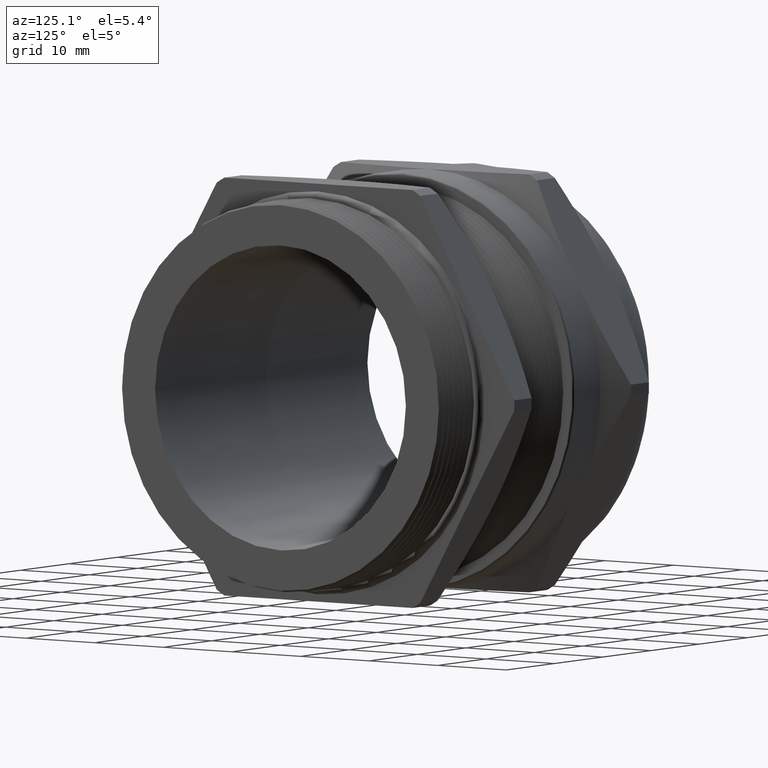
[diagram: clean part render]
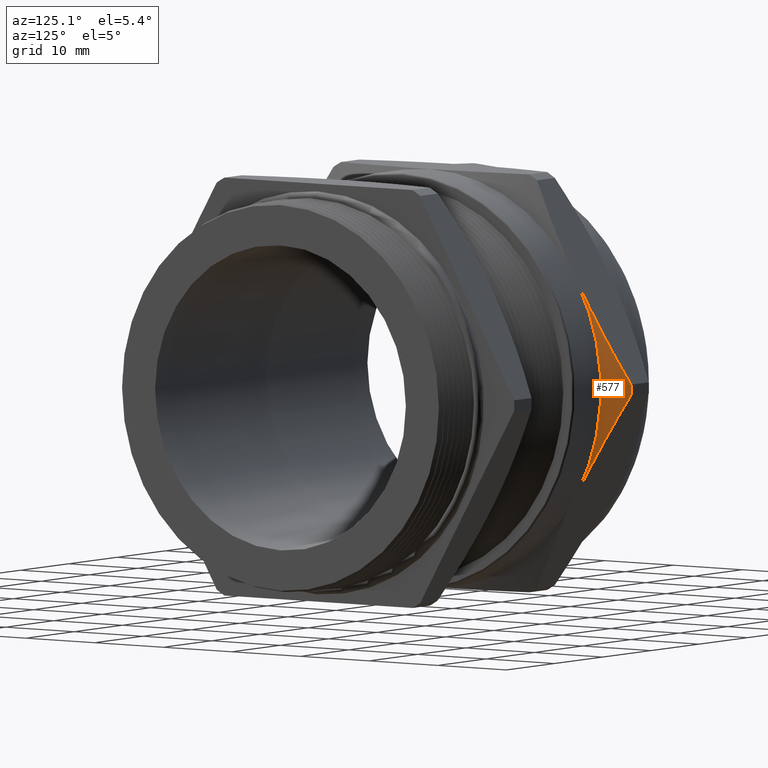
[diagram: same view with one face highlighted and labeled with its STEP entity id]
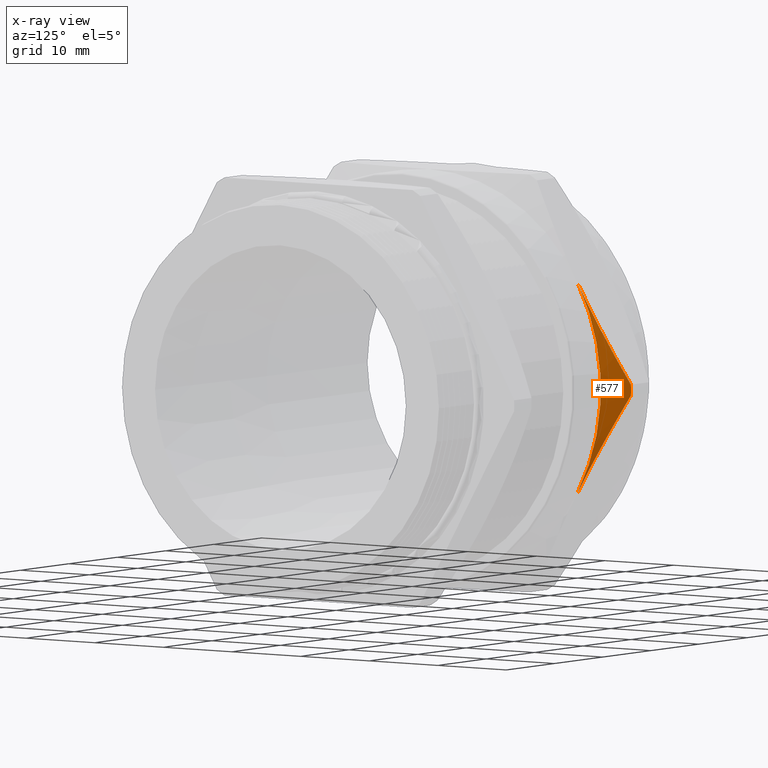
[diagram: x-ray of the same camera — body ghosted, the highlighted face saturated]
A machine part, auxiliary view. The second image highlights one B-rep face of the part: STEP entity #577.
The next image is the same camera in x-ray: the body ghosted, the highlighted face saturated — about 0% of this face is hidden behind the body in this view.
In plain terms, the highlighted conical surface has half-angle 70 deg.
Its self-contained STEP definition (entity closure, byte-faithful):
#364 = EDGE_CURVE ( 'NONE', #365, #385, #1491, .T. ) ;
#365 = VERTEX_POINT ( 'NONE', #1486 ) ;
#385 = VERTEX_POINT ( 'NONE', #1511 ) ;
#502 = EDGE_LOOP ( 'NONE', ( #503, #504, #505, #506 ) ) ;
#503 = ORIENTED_EDGE ( 'NONE', *, *, #364, .T. ) ;
#504 = ORIENTED_EDGE ( 'NONE', *, *, #4072, .F. ) ;
#505 = ORIENTED_EDGE ( 'NONE', *, *, #4236, .T. ) ;
#506 = ORIENTED_EDGE ( 'NONE', *, *, #4318, .F. ) ;
#577 = ADVANCED_FACE ( 'NONE', ( #1809 ), #1808, .T. ) ;
#1486 = CARTESIAN_POINT ( 'NONE',  ( -0.3674999999999998300, 0.8530350227276717300, 0.4924999999999999400 ) ) ;
#1487 = DIRECTION ( 'NONE',  ( 0.0000000000000000000, 0.0000000000000000000, 1.000000000000000000 ) ) ;
#1488 = DIRECTION ( 'NONE',  ( -1.000000000000000000, 0.0000000000000000000, 0.0000000000000000000 ) ) ;
#1489 = CARTESIAN_POINT ( 'NONE',  ( -0.3674999999999998300, 0.0000000000000000000, 0.0000000000000000000 ) ) ;
#1490 = AXIS2_PLACEMENT_3D ( 'NONE', #1489, #1488, #1487 ) ;
#1491 = CIRCLE ( 'NONE', #1490, 0.9849999999999999900 ) ;
#1511 = CARTESIAN_POINT ( 'NONE',  ( -0.3674999999999998300, 0.8530350227276719500, -0.4924999999999994400 ) ) ;
#1804 = DIRECTION ( 'NONE',  ( 0.0000000000000000000, 0.0000000000000000000, -1.000000000000000000 ) ) ;
#1805 = DIRECTION ( 'NONE',  ( -1.000000000000000000, 0.0000000000000000000, 0.0000000000000000000 ) ) ;
#1806 = AXIS2_PLACEMENT_3D ( 'NONE', #1814, #1805, #1804 ) ;
#1808 = CONICAL_SURFACE ( 'NONE', #1806, 0.9849999999999997600, 1.221730476396033500 ) ;
#1809 = FACE_OUTER_BOUND ( 'NONE', #502, .T. ) ;
#1814 = CARTESIAN_POINT ( 'NONE',  ( -0.3674999999999998300, 0.0000000000000000000, 0.0000000000000000000 ) ) ;
#2844 = B_SPLINE_CURVE_WITH_KNOTS ( 'NONE', 3,
 ( #2895, #2894, #2893, #2892, #2891, #2890 ),
 .UNSPECIFIED., .F., .F.,
 ( 4, 2, 4 ),
 ( 2.309401076741337200E-007, 0.006847396926039362800, 0.01369456291197105100 ),
 .UNSPECIFIED. ) ;
#2890 = CARTESIAN_POINT ( 'NONE',  ( -0.3674999999999998300, 0.8530350227276719500, -0.4924999999999994400 ) ) ;
#2891 = CARTESIAN_POINT ( 'NONE',  ( -0.3675000000000001000, 0.8979639333965154800, -0.4146808439928400000 ) ) ;
#2892 = CARTESIAN_POINT ( 'NONE',  ( -0.3720504794872306300, 0.9428928440653582300, -0.3368616879856804500 ) ) ;
#2893 = CARTESIAN_POINT ( 'NONE',  ( -0.3893171509596630200, 1.032750665403044700, -0.1812233759713611800 ) ) ;
#2894 = CARTESIAN_POINT ( 'NONE',  ( -0.4019883081776242100, 1.077679576071887400, -0.1034042199642014200 ) ) ;
#2895 = CARTESIAN_POINT ( 'NONE',  ( -0.4176914953053086900, 1.122608486740730700, -0.02558506395704169800 ) ) ;
#3161 = CARTESIAN_POINT ( 'NONE',  ( -0.4176914953053087500, 1.122608486740731100, 0.02558506395704161400 ) ) ;
#3207 = CARTESIAN_POINT ( 'NONE',  ( -0.4176914953053086900, 1.122608486740730700, -0.02558506395704169800 ) ) ;
#3229 = DIRECTION ( 'NONE',  ( 0.0000000000000000000, -6.838973831690964300E-014, 1.000000000000000000 ) ) ;
#3230 = DIRECTION ( 'NONE',  ( 1.000000000000000000, 0.0000000000000000000, 0.0000000000000000000 ) ) ;
#3231 = CARTESIAN_POINT ( 'NONE',  ( -0.4176914953053087500, 0.0000000000000000000, 0.0000000000000000000 ) ) ;
#3232 = AXIS2_PLACEMENT_3D ( 'NONE', #3231, #3230, #3229 ) ;
#3233 = CIRCLE ( 'NONE', #3232, 1.122900000000000000 ) ;
#3397 = CARTESIAN_POINT ( 'NONE',  ( -0.4176914953053087500, 1.122608486740731100, 0.02558506395704161400 ) ) ;
#3398 = CARTESIAN_POINT ( 'NONE',  ( -0.4019883081776243800, 1.077679576071887600, 0.1034042199642013200 ) ) ;
#3399 = CARTESIAN_POINT ( 'NONE',  ( -0.3893171509596631300, 1.032750665403044700, 0.1812233759713610400 ) ) ;
#3400 = CARTESIAN_POINT ( 'NONE',  ( -0.3720504794872306300, 0.9428928440653583400, 0.3368616879856805600 ) ) ;
#3401 = CARTESIAN_POINT ( 'NONE',  ( -0.3675000000000000500, 0.8979639333965152600, 0.4146808439928402800 ) ) ;
#3402 = CARTESIAN_POINT ( 'NONE',  ( -0.3674999999999998300, 0.8530350227276717300, 0.4924999999999999400 ) ) ;
#3403 = B_SPLINE_CURVE_WITH_KNOTS ( 'NONE', 3,
 ( #3402, #3401, #3400, #3399, #3398, #3397 ),
 .UNSPECIFIED., .F., .F.,
 ( 4, 2, 4 ),
 ( 0.01369456291197107000, 0.02054172889790277200, 0.02738889488383446800 ),
 .UNSPECIFIED. ) ;
#4072 = EDGE_CURVE ( 'NONE', #4221, #385, #2844, .T. ) ;
#4211 = VERTEX_POINT ( 'NONE', #3161 ) ;
#4221 = VERTEX_POINT ( 'NONE', #3207 ) ;
#4236 = EDGE_CURVE ( 'NONE', #4221, #4211, #3233, .T. ) ;
#4318 = EDGE_CURVE ( 'NONE', #365, #4211, #3403, .T. ) ;